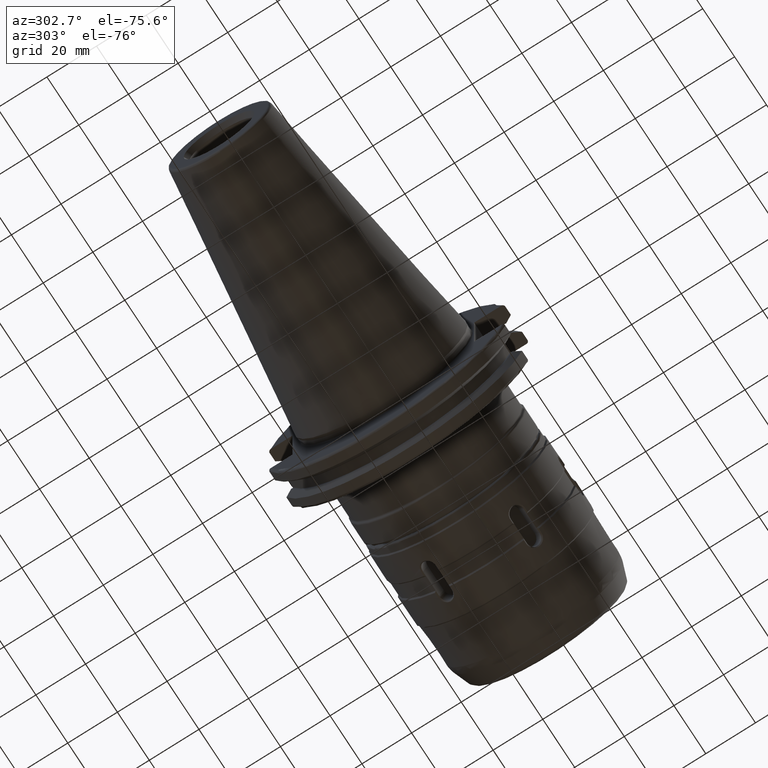
[diagram: clean part render]
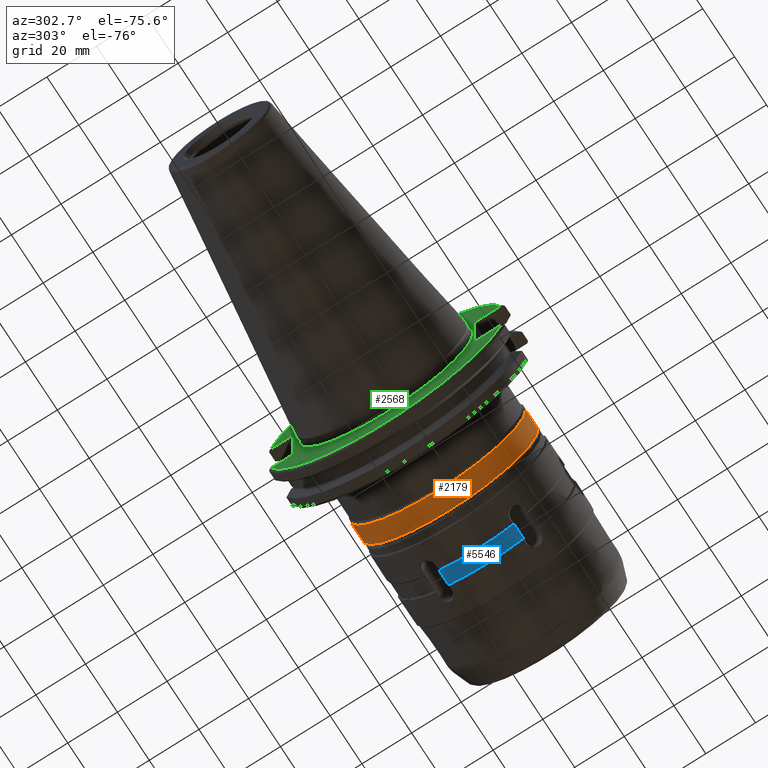
[diagram: same view with three faces highlighted in distinct colors, each labeled with its STEP entity id]
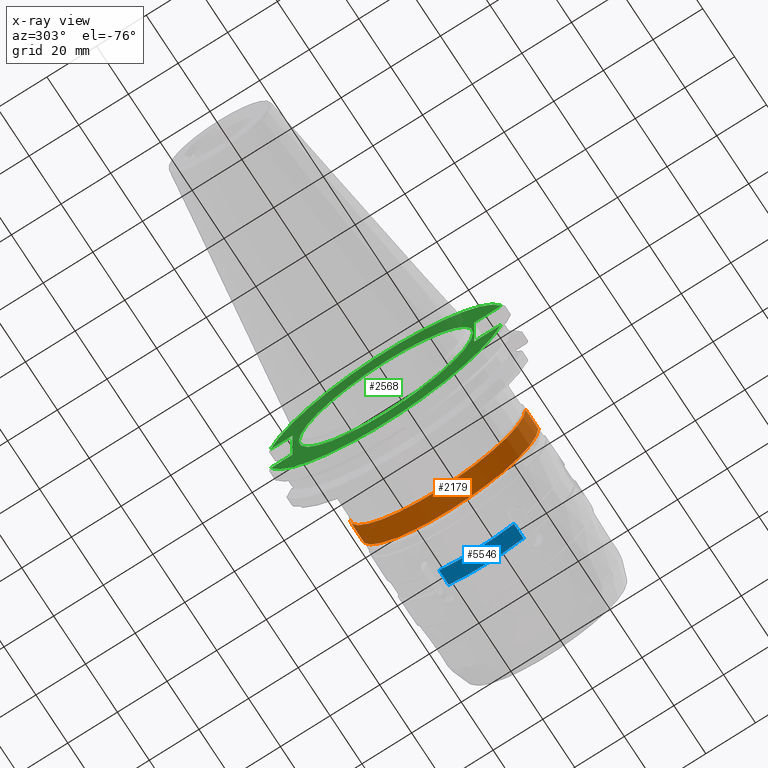
[diagram: x-ray of the same camera — body ghosted, the three highlighted faces saturated]
A machine part, auxiliary view with three faces highlighted in distinct colors.
The next image is the same camera in x-ray (body ghosted, the three faces saturated) — at least one of them is partly hidden behind the body in this view.
Their STEP definitions:

[orange] entity #2179 — the highlighted cylindrical surface (partial cylindrical patch) has radius 35.5 mm, axis along (1, 0, 0).
#499=CARTESIAN_POINT('',(4.35E1,0.E0,0.E0));
#500=DIRECTION('',(-1.E0,0.E0,0.E0));
#501=DIRECTION('',(0.E0,1.E0,0.E0));
#502=AXIS2_PLACEMENT_3D('',#499,#500,#501);
#504=DIRECTION('',(-1.E0,0.E0,-2.915355521064E-11));
#505=VECTOR('',#504,8.001849177012E0);
#506=CARTESIAN_POINT('',(4.35E1,3.55E1,-3.574243192308E-12));
#507=LINE('',#506,#505);
#508=CARTESIAN_POINT('',(3.549815082299E1,0.E0,0.E0));
#509=DIRECTION('',(1.E0,0.E0,0.E0));
#510=DIRECTION('',(0.E0,-1.E0,0.E0));
#511=AXIS2_PLACEMENT_3D('',#508,#509,#510);
#513=DIRECTION('',(-1.E0,0.E0,2.915251688154E-11));
#514=VECTOR('',#513,8.001849177012E0);
#515=CARTESIAN_POINT('',(4.35E1,-3.55E1,3.573067346838E-12));
#516=LINE('',#515,#514);
#1361=CARTESIAN_POINT('',(3.549815082299E1,-3.55E1,0.E0));
#1362=CARTESIAN_POINT('',(3.549815082299E1,3.55E1,0.E0));
#1363=VERTEX_POINT('',#1361);
#1364=VERTEX_POINT('',#1362);
#1369=CARTESIAN_POINT('',(4.35E1,3.55E1,0.E0));
#1370=CARTESIAN_POINT('',(4.35E1,-3.55E1,0.E0));
#1371=VERTEX_POINT('',#1369);
#1372=VERTEX_POINT('',#1370);
#2165=CARTESIAN_POINT('',(0.E0,0.E0,0.E0));
#2166=DIRECTION('',(1.E0,0.E0,0.E0));
#2167=DIRECTION('',(0.E0,-1.E0,0.E0));
#2168=AXIS2_PLACEMENT_3D('',#2165,#2166,#2167);
#2169=CYLINDRICAL_SURFACE('',#2168,3.55E1);
#2170=ORIENTED_EDGE('',*,*,#2155,.F.);
#2172=ORIENTED_EDGE('',*,*,#2171,.T.);
#2174=ORIENTED_EDGE('',*,*,#2173,.F.);
#2176=ORIENTED_EDGE('',*,*,#2175,.F.);
#2177=EDGE_LOOP('',(#2170,#2172,#2174,#2176));
#2178=FACE_OUTER_BOUND('',#2177,.F.);
#2179=ADVANCED_FACE('',(#2178),#2169,.T.);
#503=CIRCLE('',#502,3.55E1);
#512=CIRCLE('',#511,3.55E1);
#2155=EDGE_CURVE('',#1371,#1372,#503,.T.);
#2171=EDGE_CURVE('',#1371,#1364,#507,.T.);
#2173=EDGE_CURVE('',#1363,#1364,#512,.T.);
#2175=EDGE_CURVE('',#1372,#1363,#516,.T.);

[blue] entity #5546 — the highlighted cylindrical surface (partial cylindrical patch) has radius 35.5 mm, axis along (1, 0, 0).
#3237=DIRECTION('',(1.E0,0.E0,0.E0));
#3238=VECTOR('',#3237,6.E0);
#3239=CARTESIAN_POINT('',(-4.55E1,1.508842994447E1,-3.213392727027E1));
#3240=LINE('',#3239,#3238);
#3241=DIRECTION('',(1.E0,0.E0,0.E0));
#3242=VECTOR('',#3241,6.E0);
#3243=CARTESIAN_POINT('',(-4.55E1,-1.508842994447E1,-3.213392727027E1));
#3244=LINE('',#3243,#3242);
#3297=CARTESIAN_POINT('',(-3.95E1,0.E0,0.E0));
#3298=DIRECTION('',(-1.E0,0.E0,0.E0));
#3299=DIRECTION('',(0.E0,4.250261956189E-1,-9.051810498667E-1));
#3300=AXIS2_PLACEMENT_3D('',#3297,#3298,#3299);
#3514=CARTESIAN_POINT('',(-4.55E1,0.E0,0.E0));
#3515=DIRECTION('',(1.E0,0.E0,0.E0));
#3516=DIRECTION('',(0.E0,-4.250261956189E-1,-9.051810498667E-1));
#3517=AXIS2_PLACEMENT_3D('',#3514,#3515,#3516);
#4885=CARTESIAN_POINT('',(-4.55E1,-1.508842994447E1,-3.213392727027E1));
#4886=CARTESIAN_POINT('',(-3.95E1,-1.508842994447E1,-3.213392727027E1));
#4887=VERTEX_POINT('',#4885);
#4888=VERTEX_POINT('',#4886);
#4905=CARTESIAN_POINT('',(-4.55E1,1.508842994447E1,-3.213392727027E1));
#4906=CARTESIAN_POINT('',(-3.95E1,1.508842994447E1,-3.213392727027E1));
#4907=VERTEX_POINT('',#4905);
#4908=VERTEX_POINT('',#4906);
#5531=CARTESIAN_POINT('',(0.E0,0.E0,0.E0));
#5532=DIRECTION('',(1.E0,0.E0,0.E0));
#5533=DIRECTION('',(0.E0,-1.E0,0.E0));
#5534=AXIS2_PLACEMENT_3D('',#5531,#5532,#5533);
#5535=CYLINDRICAL_SURFACE('',#5534,3.55E1);
#5537=ORIENTED_EDGE('',*,*,#5536,.F.);
#5539=ORIENTED_EDGE('',*,*,#5538,.F.);
#5541=ORIENTED_EDGE('',*,*,#5540,.T.);
#5543=ORIENTED_EDGE('',*,*,#5542,.F.);
#5544=EDGE_LOOP('',(#5537,#5539,#5541,#5543));
#5545=FACE_OUTER_BOUND('',#5544,.F.);
#5546=ADVANCED_FACE('',(#5545),#5535,.T.);
#3301=CIRCLE('',#3300,3.55E1);
#3518=CIRCLE('',#3517,3.55E1);
#5536=EDGE_CURVE('',#4907,#4908,#3240,.T.);
#5538=EDGE_CURVE('',#4887,#4907,#3518,.T.);
#5540=EDGE_CURVE('',#4887,#4888,#3244,.T.);
#5542=EDGE_CURVE('',#4908,#4888,#3301,.T.);

[green] entity #2568 — the highlighted planar face has unit normal (1, 0, 0).
#683=CARTESIAN_POINT('',(3.175E0,0.E0,0.E0));
#684=DIRECTION('',(-1.E0,0.E0,0.E0));
#685=DIRECTION('',(0.E0,9.632228271525E-1,-2.687038988409E-1));
#686=AXIS2_PLACEMENT_3D('',#683,#684,#685);
#791=CARTESIAN_POINT('',(3.175E0,0.E0,0.E0));
#792=DIRECTION('',(-1.E0,0.E0,0.E0));
#793=DIRECTION('',(0.E0,-9.632228271525E-1,2.687038988409E-1));
#794=AXIS2_PLACEMENT_3D('',#791,#792,#793);
#796=DIRECTION('',(0.E0,-1.E0,0.E0));
#797=VECTOR('',#796,8.736201918762E0);
#798=CARTESIAN_POINT('',(3.175E0,4.643620191876E1,-1.2954E1));
#799=LINE('',#798,#797);
#800=DIRECTION('',(0.E0,0.E0,-1.E0));
#801=VECTOR('',#800,2.5908E1);
#802=CARTESIAN_POINT('',(3.175E0,3.77E1,1.2954E1));
#803=LINE('',#802,#801);
#804=DIRECTION('',(0.E0,-1.E0,0.E0));
#805=VECTOR('',#804,8.736201918762E0);
#806=CARTESIAN_POINT('',(3.175E0,4.643620191876E1,1.2954E1));
#807=LINE('',#806,#805);
#808=DIRECTION('',(0.E0,1.E0,0.E0));
#809=VECTOR('',#808,1.093620191876E1);
#810=CARTESIAN_POINT('',(3.175E0,-4.643620191876E1,1.2954E1));
#811=LINE('',#810,#809);
#812=DIRECTION('',(0.E0,0.E0,-1.E0));
#813=VECTOR('',#812,2.5908E1);
#814=CARTESIAN_POINT('',(3.175E0,-3.55E1,1.2954E1));
#815=LINE('',#814,#813);
#816=DIRECTION('',(0.E0,1.E0,0.E0));
#817=VECTOR('',#816,1.093620191876E1);
#818=CARTESIAN_POINT('',(3.175E0,-4.643620191876E1,-1.2954E1));
#819=LINE('',#818,#817);
#820=CARTESIAN_POINT('',(3.175E0,0.E0,0.E0));
#821=DIRECTION('',(1.E0,0.E0,0.E0));
#822=DIRECTION('',(0.E0,0.E0,1.E0));
#823=AXIS2_PLACEMENT_3D('',#820,#821,#822);
#825=CARTESIAN_POINT('',(3.175E0,0.E0,0.E0));
#826=DIRECTION('',(1.E0,0.E0,0.E0));
#827=DIRECTION('',(0.E0,0.E0,-1.E0));
#828=AXIS2_PLACEMENT_3D('',#825,#826,#827);
#1124=CARTESIAN_POINT('',(3.175E0,3.77E1,1.2954E1));
#1125=CARTESIAN_POINT('',(3.175E0,3.77E1,-1.2954E1));
#1126=VERTEX_POINT('',#1124);
#1127=VERTEX_POINT('',#1125);
#1146=CARTESIAN_POINT('',(3.175E0,-3.55E1,1.2954E1));
#1147=CARTESIAN_POINT('',(3.175E0,-3.55E1,-1.2954E1));
#1148=VERTEX_POINT('',#1146);
#1149=VERTEX_POINT('',#1147);
#1176=CARTESIAN_POINT('',(3.175E0,4.643620191876E1,-1.2954E1));
#1177=CARTESIAN_POINT('',(3.175E0,-4.643620191876E1,-1.2954E1));
#1178=VERTEX_POINT('',#1176);
#1179=VERTEX_POINT('',#1177);
#1184=CARTESIAN_POINT('',(3.175E0,-4.643620191876E1,1.2954E1));
#1185=CARTESIAN_POINT('',(3.175E0,4.643620191876E1,1.2954E1));
#1186=VERTEX_POINT('',#1184);
#1187=VERTEX_POINT('',#1185);
#1228=CARTESIAN_POINT('',(3.175E0,1.990201835044E-14,3.51282E1));
#1229=CARTESIAN_POINT('',(3.175E0,0.E0,-3.51282E1));
#1230=VERTEX_POINT('',#1228);
#1231=VERTEX_POINT('',#1229);
#2544=CARTESIAN_POINT('',(3.175E0,0.E0,0.E0));
#2545=DIRECTION('',(1.E0,0.E0,0.E0));
#2546=DIRECTION('',(0.E0,0.E0,1.E0));
#2547=AXIS2_PLACEMENT_3D('',#2544,#2545,#2546);
#2548=PLANE('',#2547);
#2549=ORIENTED_EDGE('',*,*,#2407,.F.);
#2551=ORIENTED_EDGE('',*,*,#2550,.T.);
#2553=ORIENTED_EDGE('',*,*,#2552,.F.);
#2555=ORIENTED_EDGE('',*,*,#2554,.F.);
#2556=ORIENTED_EDGE('',*,*,#2537,.F.);
#2557=ORIENTED_EDGE('',*,*,#2525,.T.);
#2558=ORIENTED_EDGE('',*,*,#2361,.T.);
#2559=ORIENTED_EDGE('',*,*,#2375,.F.);
#2560=EDGE_LOOP('',(#2549,#2551,#2553,#2555,#2556,#2557,#2558,#2559));
#2561=FACE_OUTER_BOUND('',#2560,.F.);
#2563=ORIENTED_EDGE('',*,*,#2562,.F.);
#2565=ORIENTED_EDGE('',*,*,#2564,.F.);
#2566=EDGE_LOOP('',(#2563,#2565));
#2567=FACE_BOUND('',#2566,.F.);
#2568=ADVANCED_FACE('',(#2561,#2567),#2548,.F.);
#687=CIRCLE('',#686,4.82092E1);
#795=CIRCLE('',#794,4.82092E1);
#824=CIRCLE('',#823,3.51282E1);
#829=CIRCLE('',#828,3.51282E1);
#2361=EDGE_CURVE('',#1148,#1149,#815,.T.);
#2375=EDGE_CURVE('',#1179,#1149,#819,.T.);
#2407=EDGE_CURVE('',#1178,#1179,#687,.T.);
#2525=EDGE_CURVE('',#1186,#1148,#811,.T.);
#2537=EDGE_CURVE('',#1186,#1187,#795,.T.);
#2550=EDGE_CURVE('',#1178,#1127,#799,.T.);
#2552=EDGE_CURVE('',#1126,#1127,#803,.T.);
#2554=EDGE_CURVE('',#1187,#1126,#807,.T.);
#2562=EDGE_CURVE('',#1230,#1231,#824,.T.);
#2564=EDGE_CURVE('',#1231,#1230,#829,.T.);